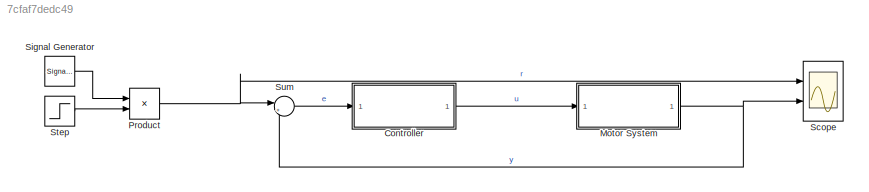
MODEL slx_7cfaf7dedc49
KIND model
CONFIG AbsTol = auto
CONFIG EnableMultiTasking = on
CONFIG FixedStep = 0.01
CONFIG MaxStep = auto
CONFIG MinStep = auto
CONFIG RelTol = 1e-3
CONFIG SampleTimeConstraint = Unconstrained
CONFIG Solver = ode1
CONFIG SolverName = ode1
CONFIG StartTime = 0.0
CONFIG StopTime = 21
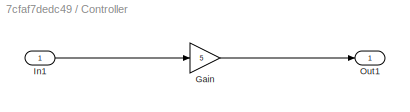
BLOCK [SubSystem] Controller
  Ports = [1, 1]
  RequestExecContextInheritance = off
BLOCK [Gain] Controller/Gain
  Gain = 5
BLOCK [Inport] Controller/In1
BLOCK [Outport] Controller/Out1
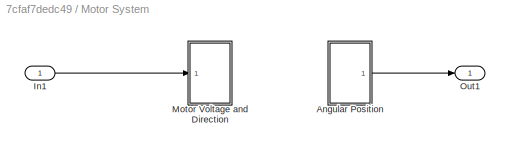
BLOCK [SubSystem] Motor System
  Ports = [1, 1]
  RequestExecContextInheritance = off
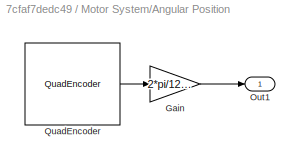
BLOCK [SubSystem] Motor System/Angular Position
  Ports = [0, 1]
  RequestExecContextInheritance = off
BLOCK [Gain] Motor System/Angular Position/Gain
  Gain = 2*pi/1216
BLOCK [Outport] Motor System/Angular Position/Out1
BLOCK [Reference] Motor System/Angular Position/QuadEncoder  REF=THLlib/QuadEncoder
  Ports = [0, 1]
  SourceBlock = THLlib/QuadEncoder
  SourceType = SubSystem
BLOCK [Inport] Motor System/In1
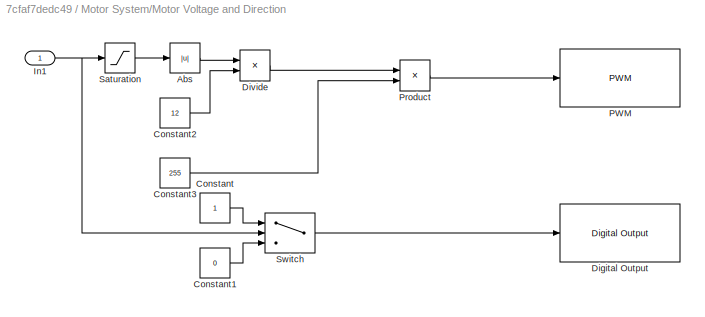
BLOCK [SubSystem] Motor System/Motor Voltage and Direction
  Ports = [1]
  RequestExecContextInheritance = off
BLOCK [Abs] Motor System/Motor Voltage and Direction/Abs
  SaturateOnIntegerOverflow = off
BLOCK [Constant] Motor System/Motor Voltage and Direction/Constant
BLOCK [Constant] Motor System/Motor Voltage and Direction/Constant1
  Value = 0
BLOCK [Constant] Motor System/Motor Voltage and Direction/Constant2
  Value = 12
BLOCK [Constant] Motor System/Motor Voltage and Direction/Constant3
  Value = 255
BLOCK [Reference] Motor System/Motor Voltage and Direction/Digital Output  REF=arduinolib/Digital Output
  Ports = [1]
  SourceBlock = arduinolib/Digital Output
  SourceProductBaseCode = ARDUINO
  SourceType = Arduino Digital Output
BLOCK [Product] Motor System/Motor Voltage and Direction/Divide
  Inputs = */
  Ports = [2, 1]
BLOCK [Inport] Motor System/Motor Voltage and Direction/In1
BLOCK [Reference] Motor System/Motor Voltage and Direction/PWM  REF=arduinolib/PWM
  Ports = [1]
  SourceBlock = arduinolib/PWM
  SourceProductBaseCode = ARDUINO
  SourceType = Arduino PWM
BLOCK [Product] Motor System/Motor Voltage and Direction/Product
  Ports = [2, 1]
BLOCK [Saturate] Motor System/Motor Voltage and Direction/Saturation
  LowerLimit = -12
  UpperLimit = 12
BLOCK [Switch] Motor System/Motor Voltage and Direction/Switch
  Criteria = u2 > Threshold
  InputSameDT = off
  SaturateOnIntegerOverflow = off
BLOCK [Outport] Motor System/Out1
BLOCK [Product] Product
  Ports = [2, 1]
BLOCK [Scope] Scope
  Floating = off
  NumInputPorts = 2
  Ports = [2]
  ScopeSpecificationString = Simulink.scopes.TimeScopeBlockCfg('CurrentConfiguration', extmgr.ConfigurationSet(extmgr.Configuration('Core','General UI',true),extmgr.Configuration('Core','Source UI',true),extmgr.Configuration('Sources','WiredSimulink',true,'DataLogging',true,'DataLoggingDecimateData',true,'DataLoggingSaveFormat','StructureWithTime'),extmgr.Configuration('Visuals','Time Domain',true,'SerializedDisplays',{struct...<+1486ch>
BLOCK [SignalGenerator] Signal Generator
  Ports = [0, 1]
  WaveForm = square
BLOCK [Step] Step
  SampleTime = 0
BLOCK [Sum] Sum
  Inputs = |+-
  Ports = [2, 1]
LINE Controller/Gain:1 -> Controller/Out1:1
LINE Controller/In1:1 -> Controller/Gain:1
LINE Controller:1 -> Motor System:1
LINE Motor System/Angular Position/Gain:1 -> Motor System/Angular Position/Out1:1
LINE Motor System/Angular Position/QuadEncoder:1 -> Motor System/Angular Position/Gain:1
LINE Motor System/Angular Position:1 -> Motor System/Out1:1
LINE Motor System/In1:1 -> Motor System/Motor Voltage and Direction:1
LINE Motor System/Motor Voltage and Direction/Abs:1 -> Motor System/Motor Voltage and Direction/Divide:1
LINE Motor System/Motor Voltage and Direction/Constant1:1 -> Motor System/Motor Voltage and Direction/Switch:3
LINE Motor System/Motor Voltage and Direction/Constant2:1 -> Motor System/Motor Voltage and Direction/Divide:2
LINE Motor System/Motor Voltage and Direction/Constant3:1 -> Motor System/Motor Voltage and Direction/Product:2
LINE Motor System/Motor Voltage and Direction/Constant:1 -> Motor System/Motor Voltage and Direction/Switch:1
LINE Motor System/Motor Voltage and Direction/Divide:1 -> Motor System/Motor Voltage and Direction/Product:1
NET Motor System/Motor Voltage and Direction/In1:1 -> Motor System/Motor Voltage and Direction/Saturation:1, Motor System/Motor Voltage and Direction/Switch:2
LINE Motor System/Motor Voltage and Direction/Product:1 -> Motor System/Motor Voltage and Direction/PWM:1
LINE Motor System/Motor Voltage and Direction/Saturation:1 -> Motor System/Motor Voltage and Direction/Abs:1
LINE Motor System/Motor Voltage and Direction/Switch:1 -> Motor System/Motor Voltage and Direction/Digital Output:1
NET Motor System:1 -> Scope:2, Sum:2
NET Product:1 -> Scope:1, Sum:1
LINE Signal Generator:1 -> Product:1
LINE Step:1 -> Product:2
LINE Sum:1 -> Controller:1
note: NET lines group one-source signal fan-out (src -> all destinations, sorted); 1:1 wires keep LINE
